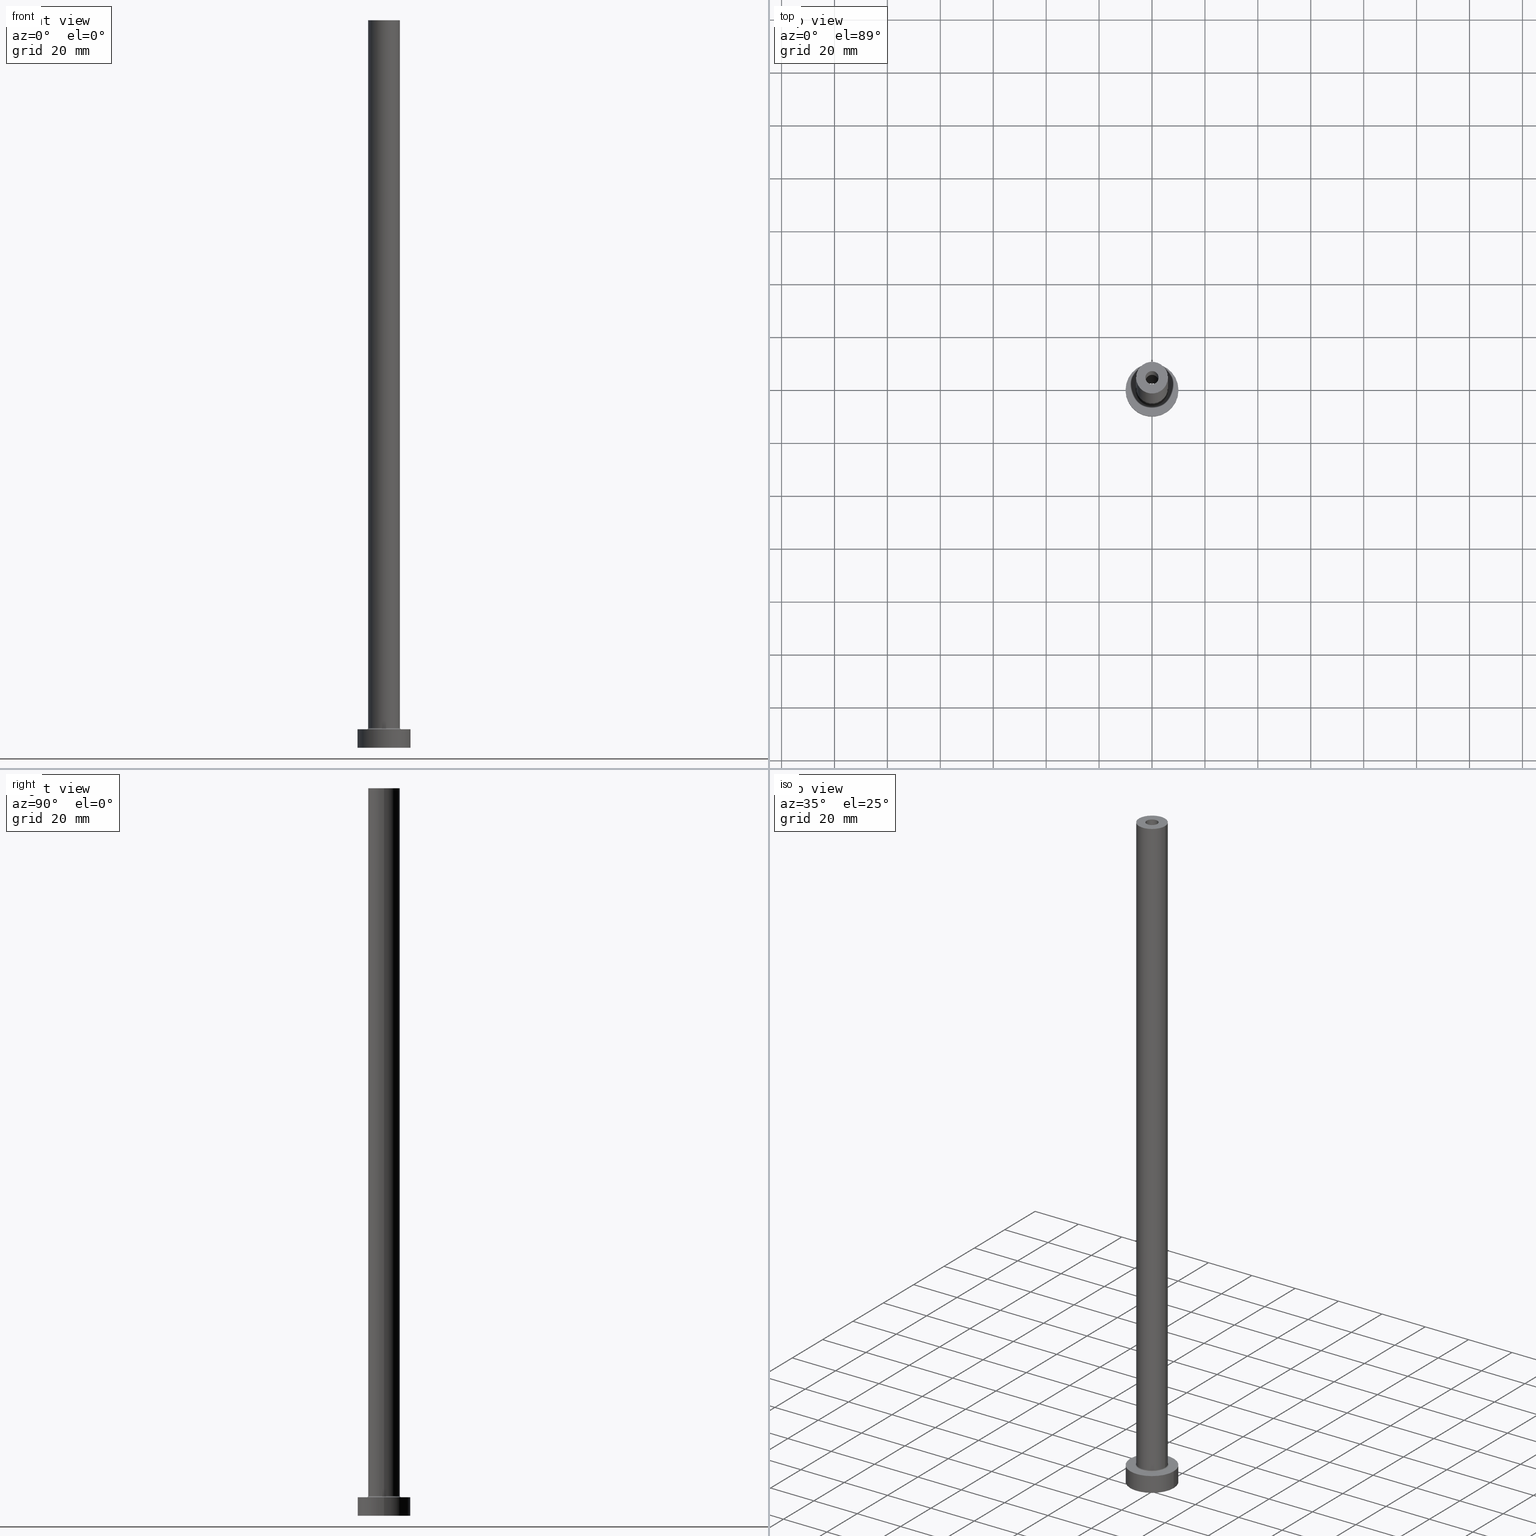
[diagram: canonical four-view strip — front | top / right | iso, engineering-drawing reading convention]
A machine part, canonical four-view strip (front | top / right | iso — engineering-drawing reading convention). The complete STEP part file that produces these views, byte-faithful:
ISO-10303-21;
HEADER;
FILE_DESCRIPTION (( 'STEP AP203' ),
    '1' );
FILE_NAME ('1d5c.STEP',
    '2023-02-13T16:46:18',
    ( '' ),
    ( '' ),
    'SwSTEP 2.0',
    'SolidWorks 2019',
    '' );
FILE_SCHEMA (( 'CONFIG_CONTROL_DESIGN' ));
ENDSEC;

DATA;
#1 = EDGE_CURVE ( 'NONE', #172, #48, #207, .T. ) ;
#2 = CARTESIAN_POINT ( 'NONE',  ( 6.000000000000000888, 7.347880794884120722E-16, 275.0000000000000000 ) ) ;
#3 = DATE_AND_TIME ( #288, #331 ) ;
#4 = DIRECTION ( 'NONE',  ( 1.000000000000000000, 0.000000000000000000, 0.000000000000000000 ) ) ;
#5 = APPROVAL_DATE_TIME ( #293, #236 ) ;
#6 = PLANE ( 'NONE',  #271 ) ;
#7 = ADVANCED_FACE ( 'NONE', ( #66, #128 ), #242, .T. ) ;
#8 = APPROVAL_STATUS ( 'not_yet_approved' ) ;
#9 = CIRCLE ( 'NONE', #319, 6.000000000000000888 ) ;
#10 = PLANE ( 'NONE',  #160 ) ;
#11 = ORIENTED_EDGE ( 'NONE', *, *, #314, .T. ) ;
#12 = FACE_OUTER_BOUND ( 'NONE', #125, .T. ) ;
#13 = EDGE_LOOP ( 'NONE', ( #121, #371, #446, #266 ) ) ;
#14 = CARTESIAN_POINT ( 'NONE',  ( -6.500000000000000888, 7.960204194457796463E-16, 7.500000000000007105 ) ) ;
#15 = ORIENTED_EDGE ( 'NONE', *, *, #328, .F. ) ;
#16 = TOROIDAL_SURFACE ( 'NONE', #232, 6.500000000000000888, 0.5000000000000000000 ) ;
#17 = CARTESIAN_POINT ( 'NONE',  ( 2.500000000000000000, 3.061616997868382648E-16, 275.0000000000000000 ) ) ;
#18 = ORIENTED_EDGE ( 'NONE', *, *, #94, .T. ) ;
#19 = PERSON_AND_ORGANIZATION ( #240, #174 ) ;
#20 = VERTEX_POINT ( 'NONE', #170 ) ;
#21 = CARTESIAN_POINT ( 'NONE',  ( 0.000000000000000000, 0.000000000000000000, 0.000000000000000000 ) ) ;
#22 = CARTESIAN_POINT ( 'NONE',  ( 0.000000000000000000, 0.000000000000000000, 7.500000000000007105 ) ) ;
#23 = EDGE_CURVE ( 'NONE', #350, #262, #388, .T. ) ;
#24 = DIRECTION ( 'NONE',  ( 1.000000000000000000, 0.000000000000000000, 0.000000000000000000 ) ) ;
#25 = AXIS2_PLACEMENT_3D ( 'NONE', #89, #335, #406 ) ;
#26 = ORIENTED_EDGE ( 'NONE', *, *, #64, .F. ) ;
#27 = CIRCLE ( 'NONE', #287, 2.649999999999999911 ) ;
#28 = APPROVAL_STATUS ( 'not_yet_approved' ) ;
#29 = DIRECTION ( 'NONE',  ( 1.000000000000000000, 0.000000000000000000, -0.000000000000000000 ) ) ;
#30 = DIRECTION ( 'NONE',  ( 0.000000000000000000, 0.000000000000000000, 1.000000000000000000 ) ) ;
#31 = EDGE_CURVE ( 'NONE', #226, #154, #210, .T. ) ;
#32 = ORIENTED_EDGE ( 'NONE', *, *, #168, .F. ) ;
#33 = EDGE_LOOP ( 'NONE', ( #189, #315, #336, #159 ) ) ;
#34 = AXIS2_PLACEMENT_3D ( 'NONE', #325, #389, #177 ) ;
#35 = CARTESIAN_POINT ( 'NONE',  ( 0.000000000000000000, 0.000000000000000000, 275.0000000000000000 ) ) ;
#36 = CARTESIAN_POINT ( 'NONE',  ( 0.000000000000000000, 0.000000000000000000, 7.000000000000000000 ) ) ;
#37 = EDGE_CURVE ( 'NONE', #439, #368, #57, .T. ) ;
#38 = CARTESIAN_POINT ( 'NONE',  ( 0.000000000000000000, 0.000000000000000000, 230.0000000000000284 ) ) ;
#39 = AXIS2_PLACEMENT_3D ( 'NONE', #302, #297, #366 ) ;
#40 = DIRECTION ( 'NONE',  ( 0.000000000000000000, 0.000000000000000000, 1.000000000000000000 ) ) ;
#41 = APPROVAL_STATUS ( 'not_yet_approved' ) ;
#42 = CARTESIAN_POINT ( 'NONE',  ( 0.000000000000000000, 0.000000000000000000, 275.0000000000000000 ) ) ;
#43 = ADVANCED_FACE ( 'NONE', ( #345 ), #311, .F. ) ;
#44 = DIRECTION ( 'NONE',  ( -1.000000000000000000, 1.224646799147351482E-16, 0.000000000000000000 ) ) ;
#45 = EDGE_LOOP ( 'NONE', ( #407, #349 ) ) ;
#46 = LOCAL_TIME ( 17, 46, 18.00000000000000000, #433 ) ;
#47 = CARTESIAN_POINT ( 'NONE',  ( 0.000000000000000000, 0.000000000000000000, 275.0000000000000000 ) ) ;
#48 = VERTEX_POINT ( 'NONE', #130 ) ;
#49 = VECTOR ( 'NONE', #60, 1000.000000000000000 ) ;
#50 = CARTESIAN_POINT ( 'NONE',  ( 2.500000000000000000, 3.061616997868382648E-16, 230.0000000000000284 ) ) ;
#51 = CARTESIAN_POINT ( 'NONE',  ( 0.000000000000000000, 0.000000000000000000, 7.000000000000000000 ) ) ;
#52 = VERTEX_POINT ( 'NONE', #346 ) ;
#53 = CIRCLE ( 'NONE', #222, 6.000000000000000888 ) ;
#54 = FACE_OUTER_BOUND ( 'NONE', #98, .T. ) ;
#55 = ORIENTED_EDGE ( 'NONE', *, *, #278, .T. ) ;
#56 = CARTESIAN_POINT ( 'NONE',  ( 0.000000000000000000, 0.000000000000000000, 0.000000000000000000 ) ) ;
#57 = LINE ( 'NONE', #200, #49 ) ;
#58 = EDGE_CURVE ( 'NONE', #133, #52, #281, .T. ) ;
#59 = CARTESIAN_POINT ( 'NONE',  ( -2.649999999999999911, 0.000000000000000000, 0.000000000000000000 ) ) ;
#60 = DIRECTION ( 'NONE',  ( -0.000000000000000000, -0.000000000000000000, -1.000000000000000000 ) ) ;
#61 = PERSON_AND_ORGANIZATION_ROLE ( 'design_owner' ) ;
#62 = AXIS2_PLACEMENT_3D ( 'NONE', #434, #255, #124 ) ;
#63 = ORIENTED_EDGE ( 'NONE', *, *, #436, .T. ) ;
#64 = EDGE_CURVE ( 'NONE', #20, #229, #27, .T. ) ;
#65 = LINE ( 'NONE', #197, #77 ) ;
#66 = FACE_BOUND ( 'NONE', #237, .T. ) ;
#67 = CARTESIAN_POINT ( 'NONE',  ( -10.00000000000000000, 0.000000000000000000, 7.000000000000000000 ) ) ;
#68 = DIRECTION ( 'NONE',  ( 0.000000000000000000, 0.000000000000000000, -1.000000000000000000 ) ) ;
#69 = AXIS2_PLACEMENT_3D ( 'NONE', #21, #416, #313 ) ;
#70 = AXIS2_PLACEMENT_3D ( 'NONE', #383, #379, #29 ) ;
#71 = CARTESIAN_POINT ( 'NONE',  ( -6.000000000000000888, 0.000000000000000000, 275.0000000000000000 ) ) ;
#72 = CC_DESIGN_DATE_AND_TIME_ASSIGNMENT ( #3, #78, ( #208 ) ) ;
#73 = PERSON_AND_ORGANIZATION ( #240, #174 ) ;
#74 = CARTESIAN_POINT ( 'NONE',  ( 6.000000000000000888, 7.347880794884120722E-16, 275.0000000000000000 ) ) ;
#75 = PERSON_AND_ORGANIZATION_ROLE ( 'creator' ) ;
#76 = CARTESIAN_POINT ( 'NONE',  ( 0.000000000000000000, 0.000000000000000000, 7.500000000000007105 ) ) ;
#77 = VECTOR ( 'NONE', #411, 1000.000000000000000 ) ;
#78 = DATE_TIME_ROLE ( 'classification_date' ) ;
#79 = EDGE_CURVE ( 'NONE', #229, #20, #385, .T. ) ;
#80 = CARTESIAN_POINT ( 'NONE',  ( 0.000000000000000000, 0.000000000000000000, 0.000000000000000000 ) ) ;
#81 = DIRECTION ( 'NONE',  ( 1.224646799147353207E-16, 1.000000000000000000, -0.000000000000000000 ) ) ;
#82 = ORIENTED_EDGE ( 'NONE', *, *, #58, .F. ) ;
#83 = PLANE ( 'NONE',  #376 ) ;
#84 = VERTEX_POINT ( 'NONE', #458 ) ;
#85 = CIRCLE ( 'NONE', #34, 2.500000000000000000 ) ;
#86 = DIRECTION ( 'NONE',  ( 0.000000000000000000, -1.000000000000000000, 0.000000000000000000 ) ) ;
#87 = ORIENTED_EDGE ( 'NONE', *, *, #179, .T. ) ;
#88 = ADVANCED_FACE ( 'NONE', ( #217 ), #356, .F. ) ;
#89 = CARTESIAN_POINT ( 'NONE',  ( 0.000000000000000000, 0.000000000000000000, 275.0000000000000000 ) ) ;
#90 = ORIENTED_EDGE ( 'NONE', *, *, #443, .F. ) ;
#91 = CARTESIAN_POINT ( 'NONE',  ( 0.000000000000000000, 0.000000000000000000, 237.4953318805774245 ) ) ;
#92 = ORIENTED_EDGE ( 'NONE', *, *, #113, .T. ) ;
#93 = PRODUCT_DEFINITION_FORMATION_WITH_SPECIFIED_SOURCE ( 'LIBOVOLN�', '', #326, .NOT_KNOWN. ) ;
#94 = EDGE_CURVE ( 'NONE', #307, #48, #264, .T. ) ;
#95 = DATE_AND_TIME ( #100, #384 ) ;
#96 = VERTEX_POINT ( 'NONE', #71 ) ;
#97 = ORIENTED_EDGE ( 'NONE', *, *, #305, .T. ) ;
#98 = EDGE_LOOP ( 'NONE', ( #373, #164, #63, #420 ) ) ;
#99 = ADVANCED_FACE ( 'NONE', ( #327 ), #142, .T. ) ;
#100 = CALENDAR_DATE ( 2023, 13, 2 ) ;
#101 = CIRCLE ( 'NONE', #25, 2.500000000000000000 ) ;
#102 = EDGE_LOOP ( 'NONE', ( #82, #386, #87, #317 ) ) ;
#103 = AXIS2_PLACEMENT_3D ( 'NONE', #38, #358, #182 ) ;
#104 = APPLICATION_PROTOCOL_DEFINITION ( 'international standard', 'config_control_design', 1994, #448 ) ;
#105 = CARTESIAN_POINT ( 'NONE',  ( -2.500000000000000000, 0.000000000000000000, 275.0000000000000000 ) ) ;
#106 = DIRECTION ( 'NONE',  ( 0.000000000000000000, 0.000000000000000000, 1.000000000000000000 ) ) ;
#107 = CC_DESIGN_DATE_AND_TIME_ASSIGNMENT ( #135, #378, ( #457 ) ) ;
#108 = CARTESIAN_POINT ( 'NONE',  ( -6.500000000000000888, 7.960204194457796463E-16, 7.000000000000002665 ) ) ;
#109 = CC_DESIGN_SECURITY_CLASSIFICATION ( #208, ( #93 ) ) ;
#110 = AXIS2_PLACEMENT_3D ( 'NONE', #22, #165, #447 ) ;
#111 = LINE ( 'NONE', #247, #318 ) ;
#112 = CARTESIAN_POINT ( 'NONE',  ( 0.000000000000000000, 0.000000000000000000, 230.0000000000000284 ) ) ;
#113 = EDGE_CURVE ( 'NONE', #96, #133, #426, .T. ) ;
#114 = CYLINDRICAL_SURFACE ( 'NONE', #261, 2.500000000000000000 ) ;
#115 = APPROVAL_ROLE ( '' ) ;
#116 = VECTOR ( 'NONE', #235, 1000.000000000000000 ) ;
#117 = CARTESIAN_POINT ( 'NONE',  ( -2.649999999999999911, 0.000000000000000000, 230.0000000000000284 ) ) ;
#118 = COORDINATED_UNIVERSAL_TIME_OFFSET ( 1, 0, .AHEAD. ) ;
#119 = DIRECTION ( 'NONE',  ( 1.000000000000000000, 0.000000000000000000, 0.000000000000000000 ) ) ;
#120 = EDGE_LOOP ( 'NONE', ( #11, #277, #256, #451 ) ) ;
#121 = ORIENTED_EDGE ( 'NONE', *, *, #176, .F. ) ;
#122 = FACE_BOUND ( 'NONE', #220, .T. ) ;
#123 = ORIENTED_EDGE ( 'NONE', *, *, #37, .T. ) ;
#124 = DIRECTION ( 'NONE',  ( -1.000000000000000000, 0.000000000000000000, 0.000000000000000000 ) ) ;
#125 = EDGE_LOOP ( 'NONE', ( #334, #415 ) ) ;
#126 = EDGE_CURVE ( 'NONE', #423, #454, #129, .T. ) ;
#127 = CALENDAR_DATE ( 2023, 13, 2 ) ;
#128 = FACE_OUTER_BOUND ( 'NONE', #259, .T. ) ;
#129 = CIRCLE ( 'NONE', #390, 2.649999999999999911 ) ;
#130 = CARTESIAN_POINT ( 'NONE',  ( -2.500000000000000000, 0.000000000000000000, 230.0000000000000284 ) ) ;
#131 = ORIENTED_EDGE ( 'NONE', *, *, #37, .F. ) ;
#132 =( NAMED_UNIT ( * ) PLANE_ANGLE_UNIT ( ) SI_UNIT ( $, .RADIAN. ) );
#133 = VERTEX_POINT ( 'NONE', #74 ) ;
#134 = AXIS2_PLACEMENT_3D ( 'NONE', #138, #106, #432 ) ;
#135 = DATE_AND_TIME ( #127, #181 ) ;
#136 = AXIS2_PLACEMENT_3D ( 'NONE', #310, #306, #414 ) ;
#137 = ORIENTED_EDGE ( 'NONE', *, *, #227, .T. ) ;
#138 = CARTESIAN_POINT ( 'NONE',  ( 0.000000000000000000, 0.000000000000000000, 0.000000000000000000 ) ) ;
#139 = CC_DESIGN_PERSON_AND_ORGANIZATION_ASSIGNMENT ( #382, #61, ( #326 ) ) ;
#140 = DIRECTION ( 'NONE',  ( 1.000000000000000000, 0.000000000000000000, 0.000000000000000000 ) ) ;
#141 = AXIS2_PLACEMENT_3D ( 'NONE', #35, #459, #140 ) ;
#142 = CYLINDRICAL_SURFACE ( 'NONE', #173, 6.000000000000000888 ) ;
#143 = AXIS2_PLACEMENT_3D ( 'NONE', #80, #258, #119 ) ;
#144 = PERSON_AND_ORGANIZATION ( #240, #174 ) ;
#145 = VECTOR ( 'NONE', #362, 1000.000000000000000 ) ;
#146 = DIRECTION ( 'NONE',  ( 1.000000000000000000, 0.000000000000000000, 0.000000000000000000 ) ) ;
#147 = EDGE_CURVE ( 'NONE', #350, #439, #338, .T. ) ;
#148 = APPROVAL_ROLE ( '' ) ;
#149 = DIRECTION ( 'NONE',  ( -1.000000000000000000, 0.000000000000000000, 0.000000000000000000 ) ) ;
#150 = PERSON_AND_ORGANIZATION ( #240, #174 ) ;
#151 = CYLINDRICAL_SURFACE ( 'NONE', #224, 2.649999999999999911 ) ;
#152 = APPROVAL_PERSON_ORGANIZATION ( #150, #236, #115 ) ;
#153 = FACE_OUTER_BOUND ( 'NONE', #340, .T. ) ;
#154 = VERTEX_POINT ( 'NONE', #180 ) ;
#155 = CC_DESIGN_PERSON_AND_ORGANIZATION_ASSIGNMENT ( #363, #290, ( #208 ) ) ;
#156 = DIRECTION ( 'NONE',  ( 1.000000000000000000, 0.000000000000000000, -0.000000000000000000 ) ) ;
#157 = ORIENTED_EDGE ( 'NONE', *, *, #126, .F. ) ;
#158 = DIRECTION ( 'NONE',  ( 1.000000000000000000, 0.000000000000000000, 0.000000000000000000 ) ) ;
#159 = ORIENTED_EDGE ( 'NONE', *, *, #418, .F. ) ;
#160 = AXIS2_PLACEMENT_3D ( 'NONE', #56, #199, #272 ) ;
#161 = DIRECTION ( 'NONE',  ( -1.000000000000000000, 0.000000000000000000, 0.000000000000000000 ) ) ;
#162 = ORIENTED_EDGE ( 'NONE', *, *, #393, .F. ) ;
#163 = EDGE_CURVE ( 'NONE', #262, #368, #365, .T. ) ;
#164 = ORIENTED_EDGE ( 'NONE', *, *, #58, .T. ) ;
#165 = DIRECTION ( 'NONE',  ( 0.000000000000000000, 0.000000000000000000, 1.000000000000000000 ) ) ;
#166 = CARTESIAN_POINT ( 'NONE',  ( 0.000000000000000000, 0.000000000000000000, 7.500000000000007105 ) ) ;
#167 = ORIENTED_EDGE ( 'NONE', *, *, #94, .F. ) ;
#168 = EDGE_CURVE ( 'NONE', #84, #172, #195, .T. ) ;
#169 = CARTESIAN_POINT ( 'NONE',  ( 10.00000000000000000, 1.224646799147353256E-15, 7.000000000000000000 ) ) ;
#170 = CARTESIAN_POINT ( 'NONE',  ( 2.649999999999999911, 3.245314017740485962E-16, 230.0000000000000284 ) ) ;
#171 = MECHANICAL_CONTEXT ( 'NONE', #354, 'mechanical' ) ;
#172 = VERTEX_POINT ( 'NONE', #251 ) ;
#173 = AXIS2_PLACEMENT_3D ( 'NONE', #42, #321, #360 ) ;
#174 = ORGANIZATION ( 'NEUR�EN�', 'NEUR�EN�', '' ) ;
#175 = DIRECTION ( 'NONE',  ( -0.000000000000000000, -0.000000000000000000, -1.000000000000000000 ) ) ;
#176 = EDGE_CURVE ( 'NONE', #198, #52, #53, .T. ) ;
#177 = DIRECTION ( 'NONE',  ( 1.000000000000000000, 0.000000000000000000, 0.000000000000000000 ) ) ;
#178 = DIRECTION ( 'NONE',  ( 1.000000000000000000, 0.000000000000000000, 0.000000000000000000 ) ) ;
#179 = EDGE_CURVE ( 'NONE', #96, #198, #111, .T. ) ;
#180 = CARTESIAN_POINT ( 'NONE',  ( 6.500000000000000888, 0.000000000000000000, 7.000000000000002665 ) ) ;
#181 = LOCAL_TIME ( 17, 46, 18.00000000000000000, #455 ) ;
#182 = DIRECTION ( 'NONE',  ( 1.000000000000000000, 0.000000000000000000, 0.000000000000000000 ) ) ;
#183 = PERSON_AND_ORGANIZATION ( #240, #174 ) ;
#184 = DIRECTION ( 'NONE',  ( 0.000000000000000000, 0.000000000000000000, 1.000000000000000000 ) ) ;
#185 = DIRECTION ( 'NONE',  ( 1.000000000000000000, 0.000000000000000000, 0.000000000000000000 ) ) ;
#186 = ORIENTED_EDGE ( 'NONE', *, *, #450, .T. ) ;
#187 = APPROVAL_PERSON_ORGANIZATION ( #73, #285, #148 ) ;
#188 = APPROVAL ( #28, 'NEUR�EN�' ) ;
#189 = ORIENTED_EDGE ( 'NONE', *, *, #79, .T. ) ;
#190 = FACE_BOUND ( 'NONE', #268, .T. ) ;
#191 = ADVANCED_BREP_SHAPE_REPRESENTATION ( '1d5c', ( #449, #252 ), #202 ) ;
#192 = EDGE_CURVE ( 'NONE', #48, #307, #85, .T. ) ;
#193 = DIRECTION ( 'NONE',  ( 0.000000000000000000, 0.000000000000000000, 1.000000000000000000 ) ) ;
#194 = EDGE_LOOP ( 'NONE', ( #233, #26 ) ) ;
#195 = CIRCLE ( 'NONE', #250, 2.500000000000000000 ) ;
#196 = AXIS2_PLACEMENT_3D ( 'NONE', #299, #441, #185 ) ;
#197 = CARTESIAN_POINT ( 'NONE',  ( -2.649999999999999911, 0.000000000000000000, 237.4953318805774245 ) ) ;
#198 = VERTEX_POINT ( 'NONE', #460 ) ;
#199 = DIRECTION ( 'NONE',  ( 0.000000000000000000, 0.000000000000000000, 1.000000000000000000 ) ) ;
#200 = CARTESIAN_POINT ( 'NONE',  ( 10.00000000000000000, 1.224646799147353256E-15, 7.000000000000000000 ) ) ;
#201 = PRODUCT_RELATED_PRODUCT_CATEGORY ( 'detail', '', ( #326 ) ) ;
#202 =( GEOMETRIC_REPRESENTATION_CONTEXT ( 3 ) GLOBAL_UNCERTAINTY_ASSIGNED_CONTEXT ( ( #410 ) ) GLOBAL_UNIT_ASSIGNED_CONTEXT ( ( #453, #132, #380 ) ) REPRESENTATION_CONTEXT ( 'NONE', 'WORKASPACE' ) );
#203 = CARTESIAN_POINT ( 'NONE',  ( 2.649999999999999911, 3.245314017740485962E-16, 237.4953318805774245 ) ) ;
#204 = ORIENTED_EDGE ( 'NONE', *, *, #192, .T. ) ;
#205 = EDGE_LOOP ( 'NONE', ( #162, #332, #55, #298 ) ) ;
#206 = ADVANCED_FACE ( 'NONE', ( #212 ), #114, .F. ) ;
#207 = LINE ( 'NONE', #105, #116 ) ;
#208 = SECURITY_CLASSIFICATION ( '', '', #257 ) ;
#209 = CARTESIAN_POINT ( 'NONE',  ( 0.000000000000000000, 0.000000000000000000, 7.000000000000000000 ) ) ;
#210 = CIRCLE ( 'NONE', #246, 6.500000000000000888 ) ;
#211 = DIRECTION ( 'NONE',  ( -0.000000000000000000, -0.000000000000000000, -1.000000000000000000 ) ) ;
#212 = FACE_OUTER_BOUND ( 'NONE', #120, .T. ) ;
#213 = CC_DESIGN_PERSON_AND_ORGANIZATION_ASSIGNMENT ( #144, #435, ( #93 ) ) ;
#214 = CARTESIAN_POINT ( 'NONE',  ( 0.000000000000000000, 0.000000000000000000, 275.0000000000000000 ) ) ;
#215 = CIRCLE ( 'NONE', #283, 6.000000000000000888 ) ;
#216 = COORDINATED_UNIVERSAL_TIME_OFFSET ( 1, 0, .AHEAD. ) ;
#217 = FACE_OUTER_BOUND ( 'NONE', #304, .T. ) ;
#218 = DIRECTION ( 'NONE',  ( -1.000000000000000000, 0.000000000000000000, 0.000000000000000000 ) ) ;
#219 = ADVANCED_FACE ( 'NONE', ( #282 ), #291, .T. ) ;
#220 = EDGE_LOOP ( 'NONE', ( #223, #157 ) ) ;
#221 = FACE_OUTER_BOUND ( 'NONE', #33, .T. ) ;
#222 = AXIS2_PLACEMENT_3D ( 'NONE', #76, #323, #429 ) ;
#223 = ORIENTED_EDGE ( 'NONE', *, *, #227, .F. ) ;
#224 = AXIS2_PLACEMENT_3D ( 'NONE', #91, #403, #218 ) ;
#225 = CARTESIAN_POINT ( 'NONE',  ( 0.000000000000000000, 0.000000000000000000, 7.500000000000007105 ) ) ;
#226 = VERTEX_POINT ( 'NONE', #108 ) ;
#227 = EDGE_CURVE ( 'NONE', #454, #423, #428, .T. ) ;
#228 = CARTESIAN_POINT ( 'NONE',  ( 0.000000000000000000, 0.000000000000000000, 230.0000000000000284 ) ) ;
#229 = VERTEX_POINT ( 'NONE', #117 ) ;
#230 = CARTESIAN_POINT ( 'NONE',  ( 10.00000000000000000, 1.224646799147353256E-15, 0.000000000000000000 ) ) ;
#231 = ORIENTED_EDGE ( 'NONE', *, *, #418, .T. ) ;
#232 = AXIS2_PLACEMENT_3D ( 'NONE', #225, #370, #158 ) ;
#233 = ORIENTED_EDGE ( 'NONE', *, *, #79, .F. ) ;
#234 = DIRECTION ( 'NONE',  ( 0.000000000000000000, 0.000000000000000000, -1.000000000000000000 ) ) ;
#235 = DIRECTION ( 'NONE',  ( 0.000000000000000000, 0.000000000000000000, -1.000000000000000000 ) ) ;
#236 = APPROVAL ( #41, 'NEUR�EN�' ) ;
#237 = EDGE_LOOP ( 'NONE', ( #320, #32 ) ) ;
#238 = FACE_OUTER_BOUND ( 'NONE', #312, .T. ) ;
#239 = ORIENTED_EDGE ( 'NONE', *, *, #168, .T. ) ;
#240 = PERSON ( 'NEUR�EN�', 'NEUR�EN�', 'NEUR�EN�', ('NEUR�EN�'), ('NEUR�EN�'), ('NEUR�EN�') ) ;
#241 = ADVANCED_FACE ( 'NONE', ( #190, #437 ), #83, .F. ) ;
#242 = PLANE ( 'NONE',  #70 ) ;
#243 = DIRECTION ( 'NONE',  ( -1.000000000000000000, 0.000000000000000000, 0.000000000000000000 ) ) ;
#244 = CIRCLE ( 'NONE', #440, 0.5000000000000004441 ) ;
#245 = CARTESIAN_POINT ( 'NONE',  ( 0.000000000000000000, 0.000000000000000000, 275.0000000000000000 ) ) ;
#246 = AXIS2_PLACEMENT_3D ( 'NONE', #270, #413, #381 ) ;
#247 = CARTESIAN_POINT ( 'NONE',  ( -6.000000000000000888, 0.000000000000000000, 275.0000000000000000 ) ) ;
#248 = CALENDAR_DATE ( 2023, 13, 2 ) ;
#249 = CARTESIAN_POINT ( 'NONE',  ( 0.000000000000000000, 0.000000000000000000, 230.0000000000000284 ) ) ;
#250 = AXIS2_PLACEMENT_3D ( 'NONE', #245, #289, #4 ) ;
#251 = CARTESIAN_POINT ( 'NONE',  ( -2.500000000000000000, 0.000000000000000000, 275.0000000000000000 ) ) ;
#252 = AXIS2_PLACEMENT_3D ( 'NONE', #274, #30, #387 ) ;
#253 = DATE_AND_TIME ( #248, #46 ) ;
#254 = ADVANCED_FACE ( 'NONE', ( #333, #12 ), #6, .T. ) ;
#255 = DIRECTION ( 'NONE',  ( -0.000000000000000000, -0.000000000000000000, -1.000000000000000000 ) ) ;
#256 = ORIENTED_EDGE ( 'NONE', *, *, #192, .F. ) ;
#257 = SECURITY_CLASSIFICATION_LEVEL ( 'unclassified' ) ;
#258 = DIRECTION ( 'NONE',  ( -0.000000000000000000, -0.000000000000000000, -1.000000000000000000 ) ) ;
#259 = EDGE_LOOP ( 'NONE', ( #92, #97 ) ) ;
#260 = DIRECTION ( 'NONE',  ( 1.000000000000000000, 0.000000000000000000, -0.000000000000000000 ) ) ;
#261 = AXIS2_PLACEMENT_3D ( 'NONE', #214, #68, #149 ) ;
#262 = VERTEX_POINT ( 'NONE', #296 ) ;
#263 = ADVANCED_FACE ( 'NONE', ( #221 ), #151, .F. ) ;
#264 = CIRCLE ( 'NONE', #103, 2.500000000000000000 ) ;
#265 = FACE_OUTER_BOUND ( 'NONE', #398, .T. ) ;
#266 = ORIENTED_EDGE ( 'NONE', *, *, #278, .F. ) ;
#267 = CARTESIAN_POINT ( 'NONE',  ( 0.000000000000000000, 0.000000000000000000, 275.0000000000000000 ) ) ;
#268 = EDGE_LOOP ( 'NONE', ( #204, #18 ) ) ;
#269 = CARTESIAN_POINT ( 'NONE',  ( 2.649999999999999911, 3.245314017740485962E-16, 0.000000000000000000 ) ) ;
#270 = CARTESIAN_POINT ( 'NONE',  ( 0.000000000000000000, 0.000000000000000000, 7.000000000000000000 ) ) ;
#271 = AXIS2_PLACEMENT_3D ( 'NONE', #51, #193, #156 ) ;
#272 = DIRECTION ( 'NONE',  ( 1.000000000000000000, 0.000000000000000000, -0.000000000000000000 ) ) ;
#273 = EDGE_LOOP ( 'NONE', ( #131, #280, #401, #456 ) ) ;
#274 = CARTESIAN_POINT ( 'NONE',  ( 0.000000000000000000, 0.000000000000000000, 0.000000000000000000 ) ) ;
#275 = ORIENTED_EDGE ( 'NONE', *, *, #64, .T. ) ;
#276 = APPROVAL_ROLE ( '' ) ;
#277 = ORIENTED_EDGE ( 'NONE', *, *, #328, .T. ) ;
#278 = EDGE_CURVE ( 'NONE', #52, #154, #279, .T. ) ;
#279 = CIRCLE ( 'NONE', #300, 0.5000000000000004441 ) ;
#280 = ORIENTED_EDGE ( 'NONE', *, *, #147, .F. ) ;
#281 = LINE ( 'NONE', #2, #145 ) ;
#282 = FACE_OUTER_BOUND ( 'NONE', #273, .T. ) ;
#283 = AXIS2_PLACEMENT_3D ( 'NONE', #47, #364, #330 ) ;
#284 = CIRCLE ( 'NONE', #69, 10.00000000000000000 ) ;
#285 = APPROVAL ( #8, 'NEUR�EN�' ) ;
#286 = DIRECTION ( 'NONE',  ( 0.000000000000000000, 0.000000000000000000, 1.000000000000000000 ) ) ;
#287 = AXIS2_PLACEMENT_3D ( 'NONE', #112, #40, #430 ) ;
#288 = CALENDAR_DATE ( 2023, 13, 2 ) ;
#289 = DIRECTION ( 'NONE',  ( 0.000000000000000000, 0.000000000000000000, 1.000000000000000000 ) ) ;
#290 = PERSON_AND_ORGANIZATION_ROLE ( 'classification_officer' ) ;
#291 = CYLINDRICAL_SURFACE ( 'NONE', #461, 10.00000000000000000 ) ;
#292 = EDGE_CURVE ( 'NONE', #439, #350, #347, .T. ) ;
#293 = DATE_AND_TIME ( #357, #412 ) ;
#294 = DIRECTION ( 'NONE',  ( 0.000000000000000000, 0.000000000000000000, -1.000000000000000000 ) ) ;
#295 = CC_DESIGN_APPROVAL ( #188, ( #457 ) ) ;
#296 = CARTESIAN_POINT ( 'NONE',  ( -10.00000000000000000, 0.000000000000000000, 0.000000000000000000 ) ) ;
#297 = DIRECTION ( 'NONE',  ( 0.000000000000000000, 0.000000000000000000, 1.000000000000000000 ) ) ;
#298 = ORIENTED_EDGE ( 'NONE', *, *, #31, .F. ) ;
#299 = CARTESIAN_POINT ( 'NONE',  ( 0.000000000000000000, 0.000000000000000000, 7.000000000000000000 ) ) ;
#300 = AXIS2_PLACEMENT_3D ( 'NONE', #375, #86, #294 ) ;
#301 = AXIS2_PLACEMENT_3D ( 'NONE', #425, #392, #243 ) ;
#302 = CARTESIAN_POINT ( 'NONE',  ( 0.000000000000000000, 0.000000000000000000, 7.000000000000000000 ) ) ;
#303 = CYLINDRICAL_SURFACE ( 'NONE', #136, 2.500000000000000000 ) ;
#304 = EDGE_LOOP ( 'NONE', ( #90, #275, #231, #137 ) ) ;
#305 = EDGE_CURVE ( 'NONE', #133, #96, #215, .T. ) ;
#306 = DIRECTION ( 'NONE',  ( 0.000000000000000000, 0.000000000000000000, -1.000000000000000000 ) ) ;
#307 = VERTEX_POINT ( 'NONE', #50 ) ;
#308 = AXIS2_PLACEMENT_3D ( 'NONE', #36, #184, #178 ) ;
#309 = CC_DESIGN_APPROVAL ( #285, ( #208 ) ) ;
#310 = CARTESIAN_POINT ( 'NONE',  ( 0.000000000000000000, 0.000000000000000000, 275.0000000000000000 ) ) ;
#311 = TOROIDAL_SURFACE ( 'NONE', #110, 6.500000000000000888, 0.5000000000000000000 ) ;
#312 = EDGE_LOOP ( 'NONE', ( #15, #239, #417, #167 ) ) ;
#313 = DIRECTION ( 'NONE',  ( 1.000000000000000000, 0.000000000000000000, 0.000000000000000000 ) ) ;
#314 = EDGE_CURVE ( 'NONE', #172, #84, #101, .T. ) ;
#315 = ORIENTED_EDGE ( 'NONE', *, *, #443, .T. ) ;
#316 = PERSON_AND_ORGANIZATION_ROLE ( 'creator' ) ;
#317 = ORIENTED_EDGE ( 'NONE', *, *, #176, .T. ) ;
#318 = VECTOR ( 'NONE', #395, 1000.000000000000000 ) ;
#319 = AXIS2_PLACEMENT_3D ( 'NONE', #166, #422, #24 ) ;
#320 = ORIENTED_EDGE ( 'NONE', *, *, #314, .F. ) ;
#321 = DIRECTION ( 'NONE',  ( -0.000000000000000000, -0.000000000000000000, -1.000000000000000000 ) ) ;
#322 = CC_DESIGN_PERSON_AND_ORGANIZATION_ASSIGNMENT ( #183, #75, ( #93 ) ) ;
#323 = DIRECTION ( 'NONE',  ( 0.000000000000000000, 0.000000000000000000, 1.000000000000000000 ) ) ;
#324 = CIRCLE ( 'NONE', #196, 6.500000000000000888 ) ;
#325 = CARTESIAN_POINT ( 'NONE',  ( 0.000000000000000000, 0.000000000000000000, 230.0000000000000284 ) ) ;
#326 = PRODUCT ( '1d5c', '1d5c', '', ( #171 ) ) ;
#327 = FACE_OUTER_BOUND ( 'NONE', #102, .T. ) ;
#328 = EDGE_CURVE ( 'NONE', #84, #307, #329, .T. ) ;
#329 = LINE ( 'NONE', #17, #421 ) ;
#330 = DIRECTION ( 'NONE',  ( 1.000000000000000000, 0.000000000000000000, 0.000000000000000000 ) ) ;
#331 = LOCAL_TIME ( 17, 46, 18.00000000000000000, #216 ) ;
#332 = ORIENTED_EDGE ( 'NONE', *, *, #436, .F. ) ;
#333 = FACE_BOUND ( 'NONE', #45, .T. ) ;
#334 = ORIENTED_EDGE ( 'NONE', *, *, #147, .T. ) ;
#335 = DIRECTION ( 'NONE',  ( 0.000000000000000000, 0.000000000000000000, 1.000000000000000000 ) ) ;
#336 = ORIENTED_EDGE ( 'NONE', *, *, #126, .T. ) ;
#337 = DIRECTION ( 'NONE',  ( -0.000000000000000000, -0.000000000000000000, -1.000000000000000000 ) ) ;
#338 = CIRCLE ( 'NONE', #308, 10.00000000000000000 ) ;
#339 = AXIS2_PLACEMENT_3D ( 'NONE', #267, #337, #161 ) ;
#340 = EDGE_LOOP ( 'NONE', ( #404, #123, #186, #351 ) ) ;
#341 = CLOSED_SHELL ( 'NONE', ( #206, #263, #43, #359, #355, #219, #254, #408, #99, #7, #374, #88, #241, #424 ) ) ;
#342 = APPLICATION_PROTOCOL_DEFINITION ( 'international standard', 'config_control_design', 1994, #354 ) ;
#343 = ORIENTED_EDGE ( 'NONE', *, *, #163, .F. ) ;
#344 = LINE ( 'NONE', #203, #402 ) ;
#345 = FACE_OUTER_BOUND ( 'NONE', #13, .T. ) ;
#346 = CARTESIAN_POINT ( 'NONE',  ( 6.000000000000000888, 7.347880794884120722E-16, 7.500000000000007105 ) ) ;
#347 = CIRCLE ( 'NONE', #39, 10.00000000000000000 ) ;
#348 = PERSON_AND_ORGANIZATION ( #240, #174 ) ;
#349 = ORIENTED_EDGE ( 'NONE', *, *, #31, .T. ) ;
#350 = VERTEX_POINT ( 'NONE', #409 ) ;
#351 = ORIENTED_EDGE ( 'NONE', *, *, #23, .F. ) ;
#352 = APPROVAL_PERSON_ORGANIZATION ( #348, #188, #276 ) ;
#353 = DIRECTION ( 'NONE',  ( -0.000000000000000000, -0.000000000000000000, -1.000000000000000000 ) ) ;
#354 = APPLICATION_CONTEXT ( 'configuration controlled 3d designs of mechanical parts and assemblies' ) ;
#355 = ADVANCED_FACE ( 'NONE', ( #153 ), #372, .T. ) ;
#356 = CYLINDRICAL_SURFACE ( 'NONE', #301, 2.649999999999999911 ) ;
#357 = CALENDAR_DATE ( 2023, 13, 2 ) ;
#358 = DIRECTION ( 'NONE',  ( 0.000000000000000000, 0.000000000000000000, 1.000000000000000000 ) ) ;
#359 = ADVANCED_FACE ( 'NONE', ( #54 ), #399, .T. ) ;
#360 = DIRECTION ( 'NONE',  ( -1.000000000000000000, 0.000000000000000000, 0.000000000000000000 ) ) ;
#361 = PRODUCT_DEFINITION_SHAPE ( 'NONE', 'NONE',  #457 ) ;
#362 = DIRECTION ( 'NONE',  ( -0.000000000000000000, -0.000000000000000000, -1.000000000000000000 ) ) ;
#363 = PERSON_AND_ORGANIZATION ( #240, #174 ) ;
#364 = DIRECTION ( 'NONE',  ( 0.000000000000000000, 0.000000000000000000, 1.000000000000000000 ) ) ;
#365 = CIRCLE ( 'NONE', #134, 10.00000000000000000 ) ;
#366 = DIRECTION ( 'NONE',  ( 1.000000000000000000, 0.000000000000000000, 0.000000000000000000 ) ) ;
#367 = CC_DESIGN_APPROVAL ( #236, ( #93 ) ) ;
#368 = VERTEX_POINT ( 'NONE', #230 ) ;
#369 = CC_DESIGN_PERSON_AND_ORGANIZATION_ASSIGNMENT ( #19, #316, ( #457 ) ) ;
#370 = DIRECTION ( 'NONE',  ( 0.000000000000000000, 0.000000000000000000, 1.000000000000000000 ) ) ;
#371 = ORIENTED_EDGE ( 'NONE', *, *, #393, .T. ) ;
#372 = CYLINDRICAL_SURFACE ( 'NONE', #62, 10.00000000000000000 ) ;
#373 = ORIENTED_EDGE ( 'NONE', *, *, #305, .F. ) ;
#374 = ADVANCED_FACE ( 'NONE', ( #397 ), #16, .F. ) ;
#375 = CARTESIAN_POINT ( 'NONE',  ( 6.500000000000000888, 0.000000000000000000, 7.500000000000007105 ) ) ;
#376 = AXIS2_PLACEMENT_3D ( 'NONE', #228, #444, #260 ) ;
#377 = VECTOR ( 'NONE', #175, 1000.000000000000000 ) ;
#378 = DATE_TIME_ROLE ( 'creation_date' ) ;
#379 = DIRECTION ( 'NONE',  ( 0.000000000000000000, 0.000000000000000000, 1.000000000000000000 ) ) ;
#380 =( NAMED_UNIT ( * ) SI_UNIT ( $, .STERADIAN. ) SOLID_ANGLE_UNIT ( ) );
#381 = DIRECTION ( 'NONE',  ( 1.000000000000000000, 0.000000000000000000, 0.000000000000000000 ) ) ;
#382 = PERSON_AND_ORGANIZATION ( #240, #174 ) ;
#383 = CARTESIAN_POINT ( 'NONE',  ( 0.000000000000000000, 0.000000000000000000, 275.0000000000000000 ) ) ;
#384 = LOCAL_TIME ( 17, 46, 18.00000000000000000, #419 ) ;
#385 = CIRCLE ( 'NONE', #405, 2.649999999999999911 ) ;
#386 = ORIENTED_EDGE ( 'NONE', *, *, #113, .F. ) ;
#387 = DIRECTION ( 'NONE',  ( 1.000000000000000000, 0.000000000000000000, 0.000000000000000000 ) ) ;
#388 = LINE ( 'NONE', #67, #377 ) ;
#389 = DIRECTION ( 'NONE',  ( 0.000000000000000000, 0.000000000000000000, 1.000000000000000000 ) ) ;
#390 = AXIS2_PLACEMENT_3D ( 'NONE', #427, #211, #146 ) ;
#391 = DIRECTION ( 'NONE',  ( 1.000000000000000000, 0.000000000000000000, 0.000000000000000000 ) ) ;
#392 = DIRECTION ( 'NONE',  ( 0.000000000000000000, 0.000000000000000000, -1.000000000000000000 ) ) ;
#393 = EDGE_CURVE ( 'NONE', #198, #226, #244, .T. ) ;
#394 = APPROVAL_DATE_TIME ( #253, #285 ) ;
#395 = DIRECTION ( 'NONE',  ( -0.000000000000000000, -0.000000000000000000, -1.000000000000000000 ) ) ;
#396 = DIRECTION ( 'NONE',  ( -1.000000000000000000, 0.000000000000000000, 0.000000000000000000 ) ) ;
#397 = FACE_OUTER_BOUND ( 'NONE', #205, .T. ) ;
#398 = EDGE_LOOP ( 'NONE', ( #343, #442 ) ) ;
#399 = CYLINDRICAL_SURFACE ( 'NONE', #339, 6.000000000000000888 ) ;
#400 = EDGE_CURVE ( 'NONE', #154, #226, #324, .T. ) ;
#401 = ORIENTED_EDGE ( 'NONE', *, *, #23, .T. ) ;
#402 = VECTOR ( 'NONE', #234, 1000.000000000000000 ) ;
#403 = DIRECTION ( 'NONE',  ( 0.000000000000000000, 0.000000000000000000, -1.000000000000000000 ) ) ;
#404 = ORIENTED_EDGE ( 'NONE', *, *, #292, .F. ) ;
#405 = AXIS2_PLACEMENT_3D ( 'NONE', #249, #286, #391 ) ;
#406 = DIRECTION ( 'NONE',  ( 1.000000000000000000, 0.000000000000000000, 0.000000000000000000 ) ) ;
#407 = ORIENTED_EDGE ( 'NONE', *, *, #400, .T. ) ;
#408 = ADVANCED_FACE ( 'NONE', ( #122, #265 ), #10, .F. ) ;
#409 = CARTESIAN_POINT ( 'NONE',  ( -10.00000000000000000, 0.000000000000000000, 7.000000000000000000 ) ) ;
#410 = UNCERTAINTY_MEASURE_WITH_UNIT (LENGTH_MEASURE( 1.000000000000000082E-05 ), #453, 'distance_accuracy_value', 'NONE');
#411 = DIRECTION ( 'NONE',  ( 0.000000000000000000, 0.000000000000000000, -1.000000000000000000 ) ) ;
#412 = LOCAL_TIME ( 17, 46, 18.00000000000000000, #118 ) ;
#413 = DIRECTION ( 'NONE',  ( -0.000000000000000000, -0.000000000000000000, -1.000000000000000000 ) ) ;
#414 = DIRECTION ( 'NONE',  ( -1.000000000000000000, 0.000000000000000000, 0.000000000000000000 ) ) ;
#415 = ORIENTED_EDGE ( 'NONE', *, *, #292, .T. ) ;
#416 = DIRECTION ( 'NONE',  ( 0.000000000000000000, 0.000000000000000000, 1.000000000000000000 ) ) ;
#417 = ORIENTED_EDGE ( 'NONE', *, *, #1, .T. ) ;
#418 = EDGE_CURVE ( 'NONE', #229, #454, #65, .T. ) ;
#419 = COORDINATED_UNIVERSAL_TIME_OFFSET ( 1, 0, .AHEAD. ) ;
#420 = ORIENTED_EDGE ( 'NONE', *, *, #179, .F. ) ;
#421 = VECTOR ( 'NONE', #438, 1000.000000000000000 ) ;
#422 = DIRECTION ( 'NONE',  ( 0.000000000000000000, 0.000000000000000000, 1.000000000000000000 ) ) ;
#423 = VERTEX_POINT ( 'NONE', #269 ) ;
#424 = ADVANCED_FACE ( 'NONE', ( #238 ), #303, .F. ) ;
#425 = CARTESIAN_POINT ( 'NONE',  ( 0.000000000000000000, 0.000000000000000000, 237.4953318805774245 ) ) ;
#426 = CIRCLE ( 'NONE', #141, 6.000000000000000888 ) ;
#427 = CARTESIAN_POINT ( 'NONE',  ( 0.000000000000000000, 0.000000000000000000, 0.000000000000000000 ) ) ;
#428 = CIRCLE ( 'NONE', #143, 2.649999999999999911 ) ;
#429 = DIRECTION ( 'NONE',  ( 1.000000000000000000, 0.000000000000000000, 0.000000000000000000 ) ) ;
#430 = DIRECTION ( 'NONE',  ( 1.000000000000000000, 0.000000000000000000, 0.000000000000000000 ) ) ;
#431 = SHAPE_DEFINITION_REPRESENTATION ( #361, #191 ) ;
#432 = DIRECTION ( 'NONE',  ( 1.000000000000000000, 0.000000000000000000, 0.000000000000000000 ) ) ;
#433 = COORDINATED_UNIVERSAL_TIME_OFFSET ( 1, 0, .AHEAD. ) ;
#434 = CARTESIAN_POINT ( 'NONE',  ( 0.000000000000000000, 0.000000000000000000, 7.000000000000000000 ) ) ;
#435 = PERSON_AND_ORGANIZATION_ROLE ( 'design_supplier' ) ;
#436 = EDGE_CURVE ( 'NONE', #52, #198, #9, .T. ) ;
#437 = FACE_OUTER_BOUND ( 'NONE', #194, .T. ) ;
#438 = DIRECTION ( 'NONE',  ( 0.000000000000000000, 0.000000000000000000, -1.000000000000000000 ) ) ;
#439 = VERTEX_POINT ( 'NONE', #169 ) ;
#440 = AXIS2_PLACEMENT_3D ( 'NONE', #14, #81, #44 ) ;
#441 = DIRECTION ( 'NONE',  ( -0.000000000000000000, -0.000000000000000000, -1.000000000000000000 ) ) ;
#442 = ORIENTED_EDGE ( 'NONE', *, *, #450, .F. ) ;
#443 = EDGE_CURVE ( 'NONE', #20, #423, #344, .T. ) ;
#444 = DIRECTION ( 'NONE',  ( 0.000000000000000000, 0.000000000000000000, 1.000000000000000000 ) ) ;
#445 = APPROVAL_DATE_TIME ( #95, #188 ) ;
#446 = ORIENTED_EDGE ( 'NONE', *, *, #400, .F. ) ;
#447 = DIRECTION ( 'NONE',  ( 1.000000000000000000, 0.000000000000000000, 0.000000000000000000 ) ) ;
#448 = APPLICATION_CONTEXT ( 'configuration controlled 3d designs of mechanical parts and assemblies' ) ;
#449 = MANIFOLD_SOLID_BREP ( 'Odebrat vysunut�m4', #341 ) ;
#450 = EDGE_CURVE ( 'NONE', #368, #262, #284, .T. ) ;
#451 = ORIENTED_EDGE ( 'NONE', *, *, #1, .F. ) ;
#452 = DESIGN_CONTEXT ( 'detailed design', #448, 'design' ) ;
#453 =( LENGTH_UNIT ( ) NAMED_UNIT ( * ) SI_UNIT ( .MILLI., .METRE. ) );
#454 = VERTEX_POINT ( 'NONE', #59 ) ;
#455 = COORDINATED_UNIVERSAL_TIME_OFFSET ( 1, 0, .AHEAD. ) ;
#456 = ORIENTED_EDGE ( 'NONE', *, *, #163, .T. ) ;
#457 = PRODUCT_DEFINITION ( 'NEZN�M�', '', #93, #452 ) ;
#458 = CARTESIAN_POINT ( 'NONE',  ( 2.500000000000000000, 3.061616997868382648E-16, 275.0000000000000000 ) ) ;
#459 = DIRECTION ( 'NONE',  ( 0.000000000000000000, 0.000000000000000000, 1.000000000000000000 ) ) ;
#460 = CARTESIAN_POINT ( 'NONE',  ( -6.000000000000000888, 0.000000000000000000, 7.500000000000007105 ) ) ;
#461 = AXIS2_PLACEMENT_3D ( 'NONE', #209, #353, #396 ) ;
ENDSEC;
END-ISO-10303-21;
